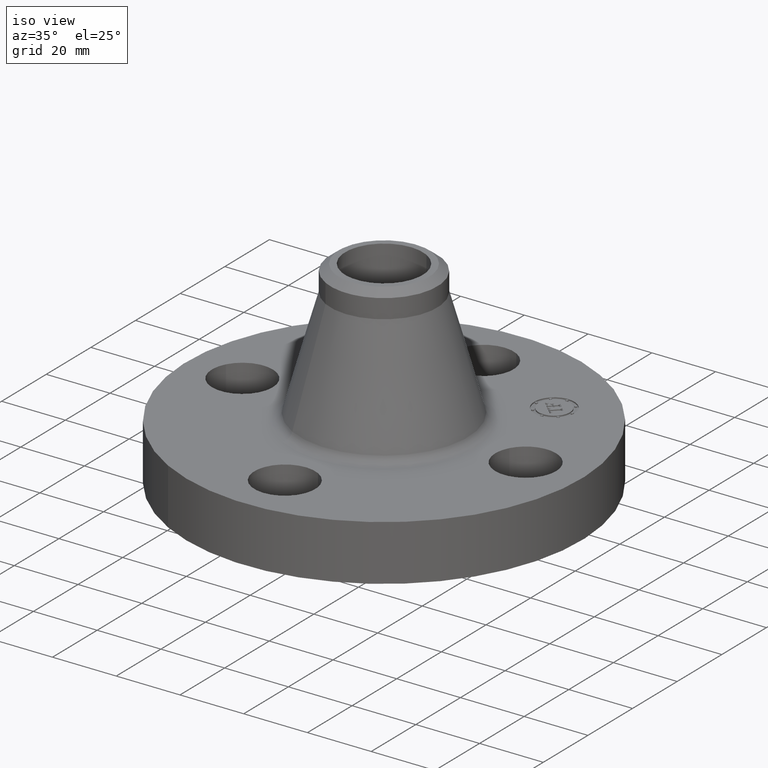
[diagram: clean part render]
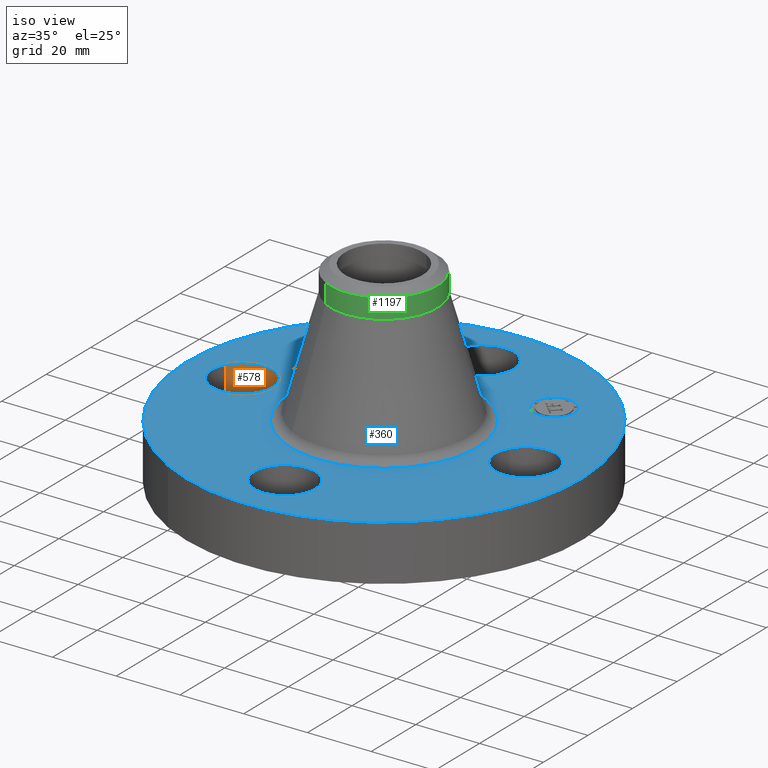
[diagram: same view with three faces highlighted in distinct colors, each labeled with its STEP entity id]
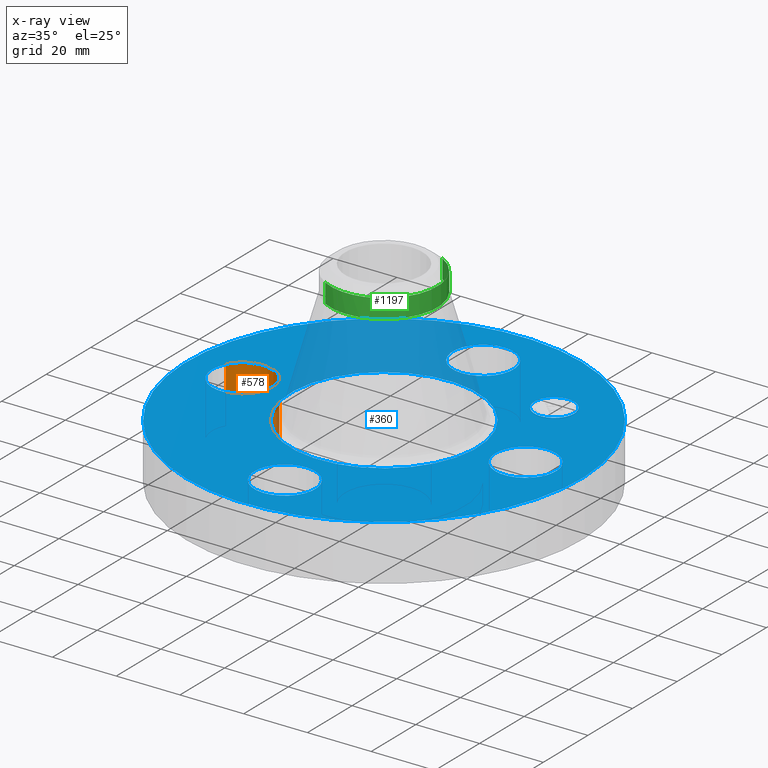
[diagram: x-ray of the same camera — body ghosted, the three highlighted faces saturated]
A machine part, iso view with three faces highlighted in distinct colors.
The next image is the same camera in x-ray (body ghosted, the three faces saturated) — at least one of them is partly hidden behind the body in this view.
Their STEP definitions:

[orange] entity #578 — the highlighted cylindrical surface (partial cylindrical patch) has radius 9.525 mm, axis along (0, 0, -1).
#210=AXIS2_PLACEMENT_3D('Circle Axis2P3D',#208,#209,$) ;
#308=AXIS2_PLACEMENT_3D('Circle Axis2P3D',#306,#307,$) ;
#570=AXIS2_PLACEMENT_3D('Cylinder Axis2P3D',#567,#568,#569) ;
#203=CARTESIAN_POINT('Vertex',(-1.42090653927,-0.179784576988,0.)) ;
#205=CARTESIAN_POINT('Vertex',(-2.07909346074,0.179784576959,0.)) ;
#208=CARTESIAN_POINT('Axis2P3D Location',(-1.75000000001,-2.74782821169E-011,0.)) ;
#306=CARTESIAN_POINT('Axis2P3D Location',(-1.75000000001,5.40152349795E-012,0.690000000003)) ;
#310=CARTESIAN_POINT('Vertex',(-2.07909346074,0.179784576991,0.690000000003)) ;
#312=CARTESIAN_POINT('Vertex',(-1.4209065393,-0.179784576978,0.689999999988)) ;
#543=CARTESIAN_POINT('Line Origine',(-1.4209065393,-0.179784576978,0.344999999985)) ;
#548=CARTESIAN_POINT('Line Origine',(-2.07909346072,0.179784576978,0.344999999985)) ;
#567=CARTESIAN_POINT('Axis2P3D Location',(-1.75000000001,-2.14313189852E-016,0.686062992129)) ;
#209=DIRECTION('Axis2P3D Direction',(0.,0.,-0.0393700787402)) ;
#307=DIRECTION('Axis2P3D Direction',(0.,0.,-0.0393700787402)) ;
#544=DIRECTION('Vector Direction',(0.,0.,-0.0393700787402)) ;
#549=DIRECTION('Vector Direction',(0.,0.,-0.0393700787402)) ;
#568=DIRECTION('Axis2P3D Direction',(0.,0.,-0.0393700787402)) ;
#569=DIRECTION('Axis2P3D XDirection',(-0.0345504945626,0.0188750212049,0.)) ;
#545=VECTOR('Line Direction',#544,0.0393700787402) ;
#550=VECTOR('Line Direction',#549,0.0393700787402) ;
#573=ORIENTED_EDGE('',*,*,#552,.F.) ;
#574=ORIENTED_EDGE('',*,*,#212,.T.) ;
#575=ORIENTED_EDGE('',*,*,#547,.T.) ;
#576=ORIENTED_EDGE('',*,*,#314,.F.) ;
#578=ADVANCED_FACE('PartBody',(#577),#571,.F.) ;
#211=CIRCLE('generated circle',#210,0.375000000021) ;
#309=CIRCLE('generated circle',#308,0.375000000021) ;
#571=CYLINDRICAL_SURFACE('generated cylinder',#570,0.375000000002) ;
#212=EDGE_CURVE('',#206,#204,#211,.T.) ;
#314=EDGE_CURVE('',#311,#313,#309,.T.) ;
#547=EDGE_CURVE('',#204,#313,#546,.F.) ;
#552=EDGE_CURVE('',#206,#311,#551,.F.) ;
#572=EDGE_LOOP('',(#573,#574,#575,#576)) ;
#577=FACE_OUTER_BOUND('',#572,.T.) ;
#546=LINE('Line',#543,#545) ;
#551=LINE('Line',#548,#550) ;
#204=VERTEX_POINT('',#203) ;
#206=VERTEX_POINT('',#205) ;
#311=VERTEX_POINT('',#310) ;
#313=VERTEX_POINT('',#312) ;

[blue] entity #360 — the highlighted planar face has unit normal (0, 0, -1).
#119=AXIS2_PLACEMENT_3D('Circle Axis2P3D',#117,#118,$) ;
#246=AXIS2_PLACEMENT_3D('Plane Axis2P3D',#243,#244,#245) ;
#250=AXIS2_PLACEMENT_3D('Circle Axis2P3D',#248,#249,$) ;
#259=AXIS2_PLACEMENT_3D('Circle Axis2P3D',#257,#258,$) ;
#272=AXIS2_PLACEMENT_3D('Circle Axis2P3D',#270,#271,$) ;
#281=AXIS2_PLACEMENT_3D('Circle Axis2P3D',#279,#280,$) ;
#290=AXIS2_PLACEMENT_3D('Circle Axis2P3D',#288,#289,$) ;
#299=AXIS2_PLACEMENT_3D('Circle Axis2P3D',#297,#298,$) ;
#308=AXIS2_PLACEMENT_3D('Circle Axis2P3D',#306,#307,$) ;
#317=AXIS2_PLACEMENT_3D('Circle Axis2P3D',#315,#316,$) ;
#326=AXIS2_PLACEMENT_3D('Circle Axis2P3D',#324,#325,$) ;
#335=AXIS2_PLACEMENT_3D('Circle Axis2P3D',#333,#334,$) ;
#344=AXIS2_PLACEMENT_3D('Circle Axis2P3D',#342,#343,$) ;
#353=AXIS2_PLACEMENT_3D('Circle Axis2P3D',#351,#352,$) ;
#46=CARTESIAN_POINT('Vertex',(1.4209065393,0.179784576977,0.689999999988)) ;
#72=CARTESIAN_POINT('Vertex',(2.07909346074,-0.179784576955,0.690000000003)) ;
#76=CARTESIAN_POINT('Control Point',(1.4209065393,0.179784576977,0.690000000003)) ;
#77=CARTESIAN_POINT('Control Point',(1.44914703461,0.231478456903,0.690000000002)) ;
#78=CARTESIAN_POINT('Control Point',(1.48753759951,0.27762732854,0.690000000002)) ;
#79=CARTESIAN_POINT('Control Point',(1.53463466834,0.315564920645,0.690000000001)) ;
#80=CARTESIAN_POINT('Control Point',(1.64116640576,0.370929207243,0.689999999999)) ;
#81=CARTESIAN_POINT('Control Point',(1.76072322347,0.38190110985,0.689999999998)) ;
#82=CARTESIAN_POINT('Control Point',(1.82085180885,0.375424381748,0.689999999997)) ;
#83=CARTESIAN_POINT('Control Point',(1.93532958528,0.339243530298,0.689999999996)) ;
#84=CARTESIAN_POINT('Control Point',(2.02762732855,0.262462400496,0.689999999994)) ;
#85=CARTESIAN_POINT('Control Point',(2.06556492066,0.215365331668,0.689999999993)) ;
#86=CARTESIAN_POINT('Control Point',(2.12092920725,0.108833594252,0.689999999992)) ;
#87=CARTESIAN_POINT('Control Point',(2.13190110986,-0.0107232234562,0.689999999991)) ;
#88=CARTESIAN_POINT('Control Point',(2.12542438176,-0.0708518088378,0.68999999999)) ;
#89=CARTESIAN_POINT('Control Point',(2.10733395603,-0.128090697051,0.689999999989)) ;
#90=CARTESIAN_POINT('Control Point',(2.07909346072,-0.179784576977,0.689999999988)) ;
#117=CARTESIAN_POINT('Axis2P3D Location',(1.75000000001,0.,0.689999999988)) ;
#243=CARTESIAN_POINT('Axis2P3D Location',(0.,2.44000000001,0.690000000003)) ;
#248=CARTESIAN_POINT('Axis2P3D Location',(8.39223703654E-016,1.82136720404E-011,0.690000000003)) ;
#252=CARTESIAN_POINT('Vertex',(1.1697983142,2.14130145102,0.689999999981)) ;
#254=CARTESIAN_POINT('Vertex',(-1.1697983142,-2.14130145102,0.689999999981)) ;
#257=CARTESIAN_POINT('Axis2P3D Location',(-8.39223703654E-016,1.82131125579E-011,0.690000000003)) ;
#270=CARTESIAN_POINT('Axis2P3D Location',(0.,1.82133922992E-011,0.690000000003)) ;
#274=CARTESIAN_POINT('Vertex',(-0.551878272917,-1.01020640245,0.690000000003)) ;
#276=CARTESIAN_POINT('Vertex',(0.551878272915,1.01020640245,0.690000000003)) ;
#279=CARTESIAN_POINT('Axis2P3D Location',(0.,1.82133922992E-011,0.690000000003)) ;
#288=CARTESIAN_POINT('Axis2P3D Location',(-3.49676543189E-017,-1.75000000003,0.690000000003)) ;
#292=CARTESIAN_POINT('Vertex',(-0.179784576973,-2.07909346072,0.690000000003)) ;
#294=CARTESIAN_POINT('Vertex',(0.179784576977,-1.4209065393,0.689999999988)) ;
#297=CARTESIAN_POINT('Axis2P3D Location',(3.49676543189E-017,-1.75000000003,0.690000000003)) ;
#306=CARTESIAN_POINT('Axis2P3D Location',(-1.75000000001,5.40152349795E-012,0.690000000003)) ;
#310=CARTESIAN_POINT('Vertex',(-2.07909346074,0.179784576991,0.690000000003)) ;
#312=CARTESIAN_POINT('Vertex',(-1.4209065393,-0.179784576978,0.689999999988)) ;
#315=CARTESIAN_POINT('Axis2P3D Location',(-1.75,3.10252611004E-011,0.690000000003)) ;
#324=CARTESIAN_POINT('Axis2P3D Location',(3.49676543189E-017,1.74999999999,0.690000000003)) ;
#328=CARTESIAN_POINT('Vertex',(0.179784576973,2.07909346069,0.690000000003)) ;
#330=CARTESIAN_POINT('Vertex',(-0.179784576977,1.4209065393,0.689999999988)) ;
#333=CARTESIAN_POINT('Axis2P3D Location',(-3.49676543189E-017,1.74999999999,0.690000000003)) ;
#342=CARTESIAN_POINT('Axis2P3D Location',(1.23743686708,1.23743686702,0.690000000003)) ;
#346=CARTESIAN_POINT('Vertex',(1.06242793876,1.41244579541,0.690000000003)) ;
#348=CARTESIAN_POINT('Vertex',(1.41244579547,1.06242793871,0.690000000003)) ;
#351=CARTESIAN_POINT('Axis2P3D Location',(1.23743686711,1.23743686706,0.690000000003)) ;
#118=DIRECTION('Axis2P3D Direction',(0.,-0.,-0.0393700787402)) ;
#244=DIRECTION('Axis2P3D Direction',(0.,0.,-0.0393700787402)) ;
#245=DIRECTION('Axis2P3D XDirection',(0.0393700787402,0.,0.)) ;
#249=DIRECTION('Axis2P3D Direction',(0.,0.,-0.0393700787402)) ;
#258=DIRECTION('Axis2P3D Direction',(0.,0.,-0.0393700787402)) ;
#271=DIRECTION('Axis2P3D Direction',(0.,0.,-0.0393700787402)) ;
#280=DIRECTION('Axis2P3D Direction',(0.,0.,-0.0393700787402)) ;
#289=DIRECTION('Axis2P3D Direction',(0.,0.,-0.0393700787402)) ;
#298=DIRECTION('Axis2P3D Direction',(0.,0.,-0.0393700787402)) ;
#307=DIRECTION('Axis2P3D Direction',(0.,0.,-0.0393700787402)) ;
#316=DIRECTION('Axis2P3D Direction',(0.,0.,-0.0393700787402)) ;
#325=DIRECTION('Axis2P3D Direction',(0.,0.,-0.0393700787402)) ;
#334=DIRECTION('Axis2P3D Direction',(0.,0.,-0.0393700787402)) ;
#343=DIRECTION('Axis2P3D Direction',(0.,0.,-0.0393700787402)) ;
#352=DIRECTION('Axis2P3D Direction',(0.,0.,-0.0393700787402)) ;
#263=ORIENTED_EDGE('',*,*,#256,.F.) ;
#264=ORIENTED_EDGE('',*,*,#261,.F.) ;
#267=ORIENTED_EDGE('',*,*,#91,.T.) ;
#268=ORIENTED_EDGE('',*,*,#121,.T.) ;
#285=ORIENTED_EDGE('',*,*,#278,.T.) ;
#286=ORIENTED_EDGE('',*,*,#283,.T.) ;
#303=ORIENTED_EDGE('',*,*,#296,.T.) ;
#304=ORIENTED_EDGE('',*,*,#301,.T.) ;
#321=ORIENTED_EDGE('',*,*,#314,.T.) ;
#322=ORIENTED_EDGE('',*,*,#319,.T.) ;
#339=ORIENTED_EDGE('',*,*,#332,.T.) ;
#340=ORIENTED_EDGE('',*,*,#337,.T.) ;
#357=ORIENTED_EDGE('',*,*,#350,.T.) ;
#358=ORIENTED_EDGE('',*,*,#355,.T.) ;
#269=FACE_BOUND('',#266,.T.) ;
#287=FACE_BOUND('',#284,.T.) ;
#305=FACE_BOUND('',#302,.T.) ;
#323=FACE_BOUND('',#320,.T.) ;
#341=FACE_BOUND('',#338,.T.) ;
#359=FACE_BOUND('',#356,.T.) ;
#360=ADVANCED_FACE('PartBody',(#265,#269,#287,#305,#323,#341,#359),#247,.F.) ;
#75=B_SPLINE_CURVE_WITH_KNOTS('',5,(#76,#77,#78,#79,#80,#81,#82,#83,#84,#85,#86,#87,#88,#89,#90),.UNSPECIFIED.,.F.,.U.,(6,3,3,3,6),(-14.9618350128,-7.48091750638,0.,7.48091750638,14.9618350128),.UNSPECIFIED.) ;
#120=CIRCLE('generated circle',#119,0.375000000001) ;
#251=CIRCLE('generated circle',#250,2.44) ;
#260=CIRCLE('generated circle',#259,2.44) ;
#273=CIRCLE('generated circle',#272,1.15112406095) ;
#282=CIRCLE('generated circle',#281,1.15112406095) ;
#291=CIRCLE('generated circle',#290,0.374999999988) ;
#300=CIRCLE('generated circle',#299,0.374999999988) ;
#309=CIRCLE('generated circle',#308,0.375000000021) ;
#318=CIRCLE('generated circle',#317,0.375000000021) ;
#327=CIRCLE('generated circle',#326,0.374999999988) ;
#336=CIRCLE('generated circle',#335,0.374999999988) ;
#345=CIRCLE('generated circle',#344,0.247500000012) ;
#354=CIRCLE('generated circle',#353,0.247500000012) ;
#91=EDGE_CURVE('',#47,#73,#75,.T.) ;
#121=EDGE_CURVE('',#73,#47,#120,.T.) ;
#256=EDGE_CURVE('',#253,#255,#251,.T.) ;
#261=EDGE_CURVE('',#255,#253,#260,.T.) ;
#278=EDGE_CURVE('',#275,#277,#273,.T.) ;
#283=EDGE_CURVE('',#277,#275,#282,.T.) ;
#296=EDGE_CURVE('',#293,#295,#291,.T.) ;
#301=EDGE_CURVE('',#295,#293,#300,.T.) ;
#314=EDGE_CURVE('',#311,#313,#309,.T.) ;
#319=EDGE_CURVE('',#313,#311,#318,.T.) ;
#332=EDGE_CURVE('',#329,#331,#327,.T.) ;
#337=EDGE_CURVE('',#331,#329,#336,.T.) ;
#350=EDGE_CURVE('',#347,#349,#345,.T.) ;
#355=EDGE_CURVE('',#349,#347,#354,.T.) ;
#262=EDGE_LOOP('',(#263,#264)) ;
#266=EDGE_LOOP('',(#267,#268)) ;
#284=EDGE_LOOP('',(#285,#286)) ;
#302=EDGE_LOOP('',(#303,#304)) ;
#320=EDGE_LOOP('',(#321,#322)) ;
#338=EDGE_LOOP('',(#339,#340)) ;
#356=EDGE_LOOP('',(#357,#358)) ;
#265=FACE_OUTER_BOUND('',#262,.T.) ;
#247=PLANE('',#246) ;
#47=VERTEX_POINT('',#46) ;
#73=VERTEX_POINT('',#72) ;
#253=VERTEX_POINT('',#252) ;
#255=VERTEX_POINT('',#254) ;
#275=VERTEX_POINT('',#274) ;
#277=VERTEX_POINT('',#276) ;
#293=VERTEX_POINT('',#292) ;
#295=VERTEX_POINT('',#294) ;
#311=VERTEX_POINT('',#310) ;
#313=VERTEX_POINT('',#312) ;
#329=VERTEX_POINT('',#328) ;
#331=VERTEX_POINT('',#330) ;
#347=VERTEX_POINT('',#346) ;
#349=VERTEX_POINT('',#348) ;

[green] entity #1197 — the highlighted cylindrical surface (partial cylindrical patch) has radius 16.764 mm, axis along (-0, 0, -1).
#851=AXIS2_PLACEMENT_3D('Circle Axis2P3D',#849,#850,$) ;
#1170=AXIS2_PLACEMENT_3D('Cylinder Axis2P3D',#1167,#1168,#1169) ;
#1187=AXIS2_PLACEMENT_3D('Circle Axis2P3D',#1185,#1186,$) ;
#815=CARTESIAN_POINT('Vertex',(-0.31642085548,-0.57920449085,2.12492912712)) ;
#822=CARTESIAN_POINT('Vertex',(0.31642085548,0.57920449085,2.12492912712)) ;
#849=CARTESIAN_POINT('Axis2P3D Location',(0.,0.,2.12492912712)) ;
#1126=CARTESIAN_POINT('Line Origine',(0.31642085548,0.57920449085,2.24303936332)) ;
#1130=CARTESIAN_POINT('Vertex',(0.31642085548,0.57920449085,2.36114959955)) ;
#1133=CARTESIAN_POINT('Line Origine',(-0.31642085548,-0.57920449085,2.24303936332)) ;
#1137=CARTESIAN_POINT('Vertex',(-0.31642085548,-0.57920449085,2.36114959955)) ;
#1167=CARTESIAN_POINT('Axis2P3D Location',(0.,0.,1.095)) ;
#1173=CARTESIAN_POINT('Control Point',(0.31642085548,0.57920449085,2.36114959956)) ;
#1174=CARTESIAN_POINT('Control Point',(0.440462863734,0.511440032896,2.36114959956)) ;
#1175=CARTESIAN_POINT('Control Point',(0.546364388821,0.410469643241,2.36114959956)) ;
#1176=CARTESIAN_POINT('Control Point',(0.622162042478,0.282690230275,2.36114959956)) ;
#1177=CARTESIAN_POINT('Control Point',(0.697837957528,-1.62812093349E-013,2.36114959955)) ;
#1178=CARTESIAN_POINT('Control Point',(0.622162042478,-0.282690230275,2.36114959955)) ;
#1179=CARTESIAN_POINT('Control Point',(0.54636438882,-0.410469643241,2.36114959955)) ;
#1180=CARTESIAN_POINT('Control Point',(0.440462863733,-0.511440032896,2.36114959955)) ;
#1181=CARTESIAN_POINT('Control Point',(0.31642085548,-0.57920449085,2.36114959955)) ;
#1182=CARTESIAN_POINT('Vertex',(0.316420855481,-0.579204490851,2.36114959956)) ;
#1185=CARTESIAN_POINT('Axis2P3D Location',(0.,0.,2.36114959955)) ;
#850=DIRECTION('Axis2P3D Direction',(-0.,0.,-0.0393700787402)) ;
#1127=DIRECTION('Vector Direction',(0.,0.,-0.0393700787402)) ;
#1134=DIRECTION('Vector Direction',(0.,0.,-0.0393700787402)) ;
#1168=DIRECTION('Axis2P3D Direction',(-0.,0.,-0.0393700787402)) ;
#1169=DIRECTION('Axis2P3D XDirection',(0.0188750212049,0.0345504945626,0.)) ;
#1186=DIRECTION('Axis2P3D Direction',(-0.,0.,-0.0393700787402)) ;
#1128=VECTOR('Line Direction',#1127,0.0393700787402) ;
#1135=VECTOR('Line Direction',#1134,0.0393700787402) ;
#1191=ORIENTED_EDGE('',*,*,#1139,.F.) ;
#1192=ORIENTED_EDGE('',*,*,#853,.F.) ;
#1193=ORIENTED_EDGE('',*,*,#1132,.T.) ;
#1194=ORIENTED_EDGE('',*,*,#1184,.F.) ;
#1195=ORIENTED_EDGE('',*,*,#1189,.T.) ;
#1197=ADVANCED_FACE('PartBody',(#1196),#1171,.T.) ;
#1172=B_SPLINE_CURVE_WITH_KNOTS('',5,(#1173,#1174,#1175,#1176,#1177,#1178,#1179,#1180,#1181),.UNSPECIFIED.,.F.,.U.,(6,3,6),(-17.9508296225,0.,17.9508296225),.UNSPECIFIED.) ;
#852=CIRCLE('generated circle',#851,0.660000000003) ;
#1188=CIRCLE('generated circle',#1187,0.660000000003) ;
#1171=CYLINDRICAL_SURFACE('generated cylinder',#1170,0.660000000003) ;
#853=EDGE_CURVE('',#823,#816,#852,.T.) ;
#1132=EDGE_CURVE('',#823,#1131,#1129,.F.) ;
#1139=EDGE_CURVE('',#816,#1138,#1136,.F.) ;
#1184=EDGE_CURVE('',#1183,#1131,#1172,.F.) ;
#1189=EDGE_CURVE('',#1183,#1138,#1188,.T.) ;
#1190=EDGE_LOOP('',(#1191,#1192,#1193,#1194,#1195)) ;
#1196=FACE_OUTER_BOUND('',#1190,.T.) ;
#1129=LINE('Line',#1126,#1128) ;
#1136=LINE('Line',#1133,#1135) ;
#816=VERTEX_POINT('',#815) ;
#823=VERTEX_POINT('',#822) ;
#1131=VERTEX_POINT('',#1130) ;
#1138=VERTEX_POINT('',#1137) ;
#1183=VERTEX_POINT('',#1182) ;